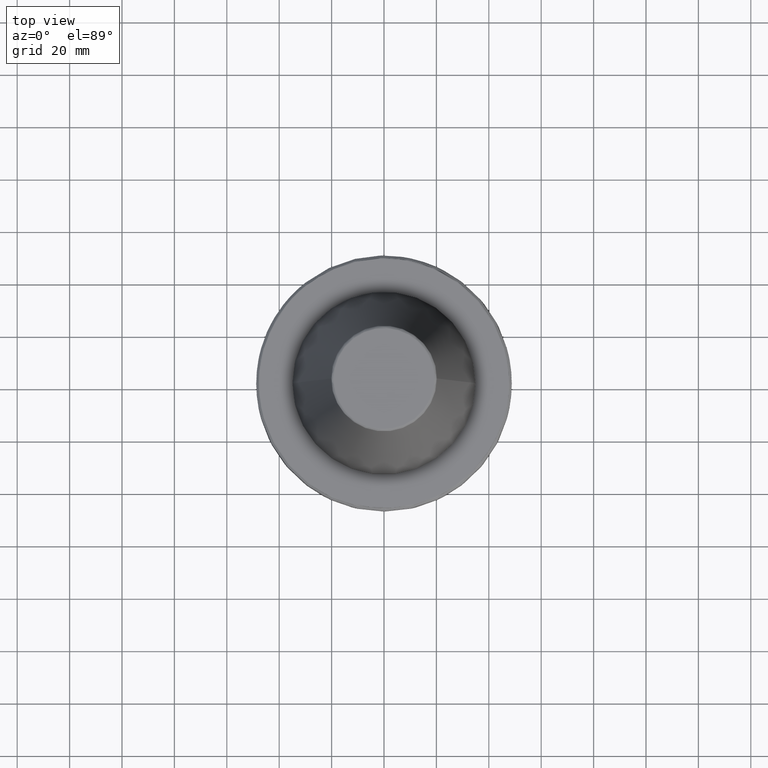
[diagram: clean part render]
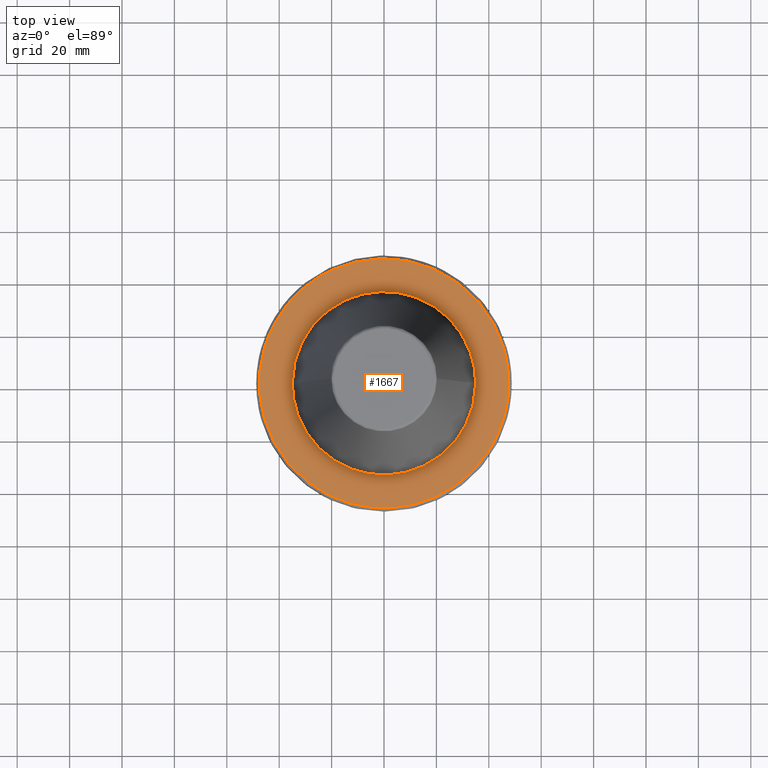
[diagram: same view with one face highlighted and labeled with its STEP entity id]
A machine part, top view. The second image highlights one B-rep face of the part: STEP entity #1667.
In plain terms, the highlighted planar face has unit normal (0, 0, 1).
Its self-contained STEP definition (entity closure, byte-faithful):
#5 = CARTESIAN_POINT ( 'NONE',  ( -30.56583245052333500, -36.56395844824054800, -3.200000000000000200 ) ) ;
#11 = CARTESIAN_POINT ( 'NONE',  ( -32.53223893886713800, -34.82602765836450200, -3.200000000000000200 ) ) ;
#22 = CARTESIAN_POINT ( 'NONE',  ( -34.57761234899415100, -32.69070567705201600, -3.199999999999999700 ) ) ;
#51 = CARTESIAN_POINT ( 'NONE',  ( -43.04865088727909500, -20.27515829118352600, -3.199999999999999700 ) ) ;
#60 = DIRECTION ( 'NONE',  ( 1.000000000000000000, 0.0000000000000000000, 0.0000000000000000000 ) ) ;
#162 = CARTESIAN_POINT ( 'NONE',  ( -43.54708784153742600, 19.43494740885934700, -3.200000000000000200 ) ) ;
#187 = DIRECTION ( 'NONE',  ( 1.000000000000000000, 0.0000000000000000000, 0.0000000000000000000 ) ) ;
#190 = CARTESIAN_POINT ( 'NONE',  ( -35.13085002082388500, -32.09796523341824300, -3.200000000000000200 ) ) ;
#203 = AXIS2_PLACEMENT_3D ( 'NONE', #1049, #1151, #1007 ) ;
#219 = ORIENTED_EDGE ( 'NONE', *, *, #4803, .T. ) ;
#272 = EDGE_CURVE ( 'NONE', #3773, #4533, #2235, .T. ) ;
#274 = CARTESIAN_POINT ( 'NONE',  ( -39.42887053637796400, -26.63902506833018400, -3.199999999999999700 ) ) ;
#280 = ORIENTED_EDGE ( 'NONE', *, *, #316, .T. ) ;
#306 = CARTESIAN_POINT ( 'NONE',  ( -37.35450850866810400, -29.52749904791864600, -3.200000000000000600 ) ) ;
#316 = EDGE_CURVE ( 'NONE', #4050, #3696, #916, .T. ) ;
#326 = CARTESIAN_POINT ( 'NONE',  ( -35.89007667602249500, -31.25572989631257700, -3.199999999999998800 ) ) ;
#414 = AXIS2_PLACEMENT_3D ( 'NONE', #5014, #5003, #60 ) ;
#420 = B_SPLINE_CURVE_WITH_KNOTS ( 'NONE', 3,
 ( #1642, #2746, #1372, #2539, #3924, #1288, #1293, #1889, #1309, #2368, #4288, #2978, #4916, #2225, #4567, #2908, #4335, #2614, #1805, #1351, #3908, #3111, #2706, #2800, #1375, #3389, #1131, #4570, #1718, #3415, #1708, #1700, #3849, #2238, #2463, #1383, #3268, #1344, #2587, #3668, #1958, #1968, #4903, #2216, #1135, #1158, #2822, #1567, #1108, #1095, #1091, #1087, #1085, #1078, #1077, #1067, #1063, #1068, #1074, #1059, #1053, #4521, #1152, #1118, #1123, #1023, #1015, #4855, #4522, #1933, #2169, #4463, #1565, #1030, #1051, #1137, #1045, #1024, #1041, #1010, #999, #995, #989, #969, #952, #950, #944, #943, #935, #932, #930, #927, #926, #919, #914, #911, #905, #904, #897, #890, #887, #880, #872, #867, #862, #861, #855, #852, #846, #844, #836, #830, #823, #821 ),
 .UNSPECIFIED., .F., .F.,
 ( 4, 1, 1, 1, 1, 1, 2, 2, 1, 1, 1, 1, 1, 2, 2, 1, 1, 1, 1, 2, 2, 2, 1, 1, 1, 1, 2, 2, 1, 1, 1, 1, 1, 2, 2, 1, 1, 1, 1, 1, 2, 2, 2, 1, 1, 1, 1, 1, 2, 2, 1, 1, 1, 1, 1, 2, 2, 1, 1, 1, 1, 2, 2, 2, 1, 1, 1, 1, 2, 2, 1, 1, 1, 1, 1, 2, 2, 1, 1, 1, 1, 1, 2, 2, 4 ),
 ( 0.0000000000000000000, 0.03124999999999995100, 0.04687499999999993100, 0.05468749999999993100, 0.05859374999999991000, 0.06054687499999991000, 0.06152343749999988200, 0.06249999999999985400, 0.09374999999999808500, 0.1093749999999971400, 0.1171874999999966800, 0.1210937499999964600, 0.1230468749999963800, 0.1240234374999963800, 0.1249999999999963800, 0.1562499999999951400, 0.1718749999999945000, 0.1796874999999942300, 0.1835937499999940600, 0.1855468749999939500, 0.1874999999999938400, 0.2499999999999893400, 0.2812499999999871200, 0.2968749999999860100, 0.3046874999999854000, 0.3085937499999851200, 0.3105468749999850100, 0.3124999999999849000, 0.3437499999999827400, 0.3593749999999816300, 0.3671874999999811300, 0.3710937499999808500, 0.3730468749999806300, 0.3740234374999805700, 0.3749999999999805200, 0.4062499999999794100, 0.4218749999999788500, 0.4296874999999785700, 0.4335937499999784600, 0.4355468749999784100, 0.4365234374999784100, 0.4374999999999784100, 0.4999999999999781300, 0.5312499999999780200, 0.5468749999999779100, 0.5546874999999779100, 0.5585937499999779100, 0.5605468749999779100, 0.5615234374999779100, 0.5624999999999779100, 0.5937499999999764600, 0.6093749999999755800, 0.6171874999999752400, 0.6210937499999750200, 0.6230468749999749100, 0.6240234374999749100, 0.6249999999999749100, 0.6562499999999756900, 0.6718749999999761300, 0.6796874999999762400, 0.6835937499999764600, 0.6855468749999765700, 0.6874999999999766900, 0.7499999999999799000, 0.7812499999999814600, 0.7968749999999823500, 0.8046874999999827900, 0.8085937499999830100, 0.8105468749999831200, 0.8124999999999832400, 0.8437499999999857900, 0.8593749999999871200, 0.8671874999999877900, 0.8710937499999881200, 0.8730468749999883400, 0.8740234374999884500, 0.8749999999999885600, 0.9062499999999917800, 0.9218749999999934500, 0.9296874999999942300, 0.9335937499999946700, 0.9355468749999948900, 0.9365234374999950000, 0.9374999999999951200, 1.000000000000000000 ),
 .UNSPECIFIED. ) ;
#430 = VERTEX_POINT ( 'NONE', #2336 ) ;
#468 = CARTESIAN_POINT ( 'NONE',  ( -43.88793353366485700, -18.40578674973217200, -3.200000000000000600 ) ) ;
#535 = ORIENTED_EDGE ( 'NONE', *, *, #581, .T. ) ;
#541 = VERTEX_POINT ( 'NONE', #4826 ) ;
#573 = CARTESIAN_POINT ( 'NONE',  ( -45.61430141498812000, 13.55000000000003400, -3.200000000000000600 ) ) ;
#581 = EDGE_CURVE ( 'NONE', #4533, #3773, #420, .T. ) ;
#586 = EDGE_LOOP ( 'NONE', ( #802, #535 ) ) ;
#603 = CARTESIAN_POINT ( 'NONE',  ( 45.61430141498814800, 13.54999999999998800, -3.200000000000008200 ) ) ;
#798 = DIRECTION ( 'NONE',  ( -0.0000000000000000000, -0.0000000000000000000, 1.000000000000000000 ) ) ;
#802 = ORIENTED_EDGE ( 'NONE', *, *, #272, .T. ) ;
#808 = CARTESIAN_POINT ( 'NONE',  ( -28.52667124222444200, 38.13264634449122100, -3.200000000000000200 ) ) ;
#812 = ORIENTED_EDGE ( 'NONE', *, *, #2497, .T. ) ;
#821 = CARTESIAN_POINT ( 'NONE',  ( -35.00000000000000000, 4.286263797015737300E-015, -3.200000000000000600 ) ) ;
#823 = CARTESIAN_POINT ( 'NONE',  ( -35.00000000000000000, -2.140949734350461300, -3.199999999999999300 ) ) ;
#825 = CARTESIAN_POINT ( 'NONE',  ( -30.00000000000000000, 36.93598507658067100, -3.200000000000008200 ) ) ;
#830 = CARTESIAN_POINT ( 'NONE',  ( -34.80522929819336000, -4.263852012492216100, -3.199999999999999700 ) ) ;
#834 = CARTESIAN_POINT ( 'NONE',  ( -26.98740680887002000, 39.23710298026052400, -3.199999999999999700 ) ) ;
#836 = CARTESIAN_POINT ( 'NONE',  ( -34.40960131014864500, -6.401595191017770000, -3.200000000000000600 ) ) ;
#840 = CARTESIAN_POINT ( 'NONE',  ( -25.33204419653259300, 40.28098785900193900, -3.200000000000000200 ) ) ;
#844 = CARTESIAN_POINT ( 'NONE',  ( -34.40272425953199300, -6.438461267132821900, -3.200000000000001100 ) ) ;
#846 = CARTESIAN_POINT ( 'NONE',  ( -34.38960595214313500, -6.508170961272730500, -3.200000000000000600 ) ) ;
#849 = CARTESIAN_POINT ( 'NONE',  ( -25.27949011361637200, 40.31399222872044400, -3.200000000000000200 ) ) ;
#852 = CARTESIAN_POINT ( 'NONE',  ( -34.36977381871909600, -6.612690763914757900, -3.200000000000000600 ) ) ;
#854 = CARTESIAN_POINT ( 'NONE',  ( -25.02211712299833800, 40.47451718244757800, -3.200000000000000200 ) ) ;
#855 = CARTESIAN_POINT ( 'NONE',  ( -34.32241613434451500, -6.856257133437938300, -3.200000000000000200 ) ) ;
#859 = CARTESIAN_POINT ( 'NONE',  ( -24.66047681321442300, 40.69683095873308800, -3.200000000000001100 ) ) ;
#861 = CARTESIAN_POINT ( 'NONE',  ( -34.22336994005453900, -7.342137192584755400, -3.200000000000000200 ) ) ;
#862 = CARTESIAN_POINT ( 'NONE',  ( -34.00795424931148100, -8.308886591280263200, -3.200000000000000600 ) ) ;
#864 = CARTESIAN_POINT ( 'NONE',  ( -25.17660737734825100, 40.37832428545157600, -3.200000000000000200 ) ) ;
#865 = CARTESIAN_POINT ( 'NONE',  ( -23.93254399511004500, 41.13291324448347600, -3.199999999999999300 ) ) ;
#867 = CARTESIAN_POINT ( 'NONE',  ( -33.50782965917290600, -10.22234251027873800, -3.199999999999999700 ) ) ;
#869 = CARTESIAN_POINT ( 'NONE',  ( -22.45806956475531600, 41.97089674870178300, -3.199999999999999700 ) ) ;
#872 = CARTESIAN_POINT ( 'NONE',  ( -32.96036308136418600, -11.82808836360453800, -3.200000000000000600 ) ) ;
#877 = CARTESIAN_POINT ( 'NONE',  ( -21.16233354877233800, 42.63057220840472200, -3.200000000000000200 ) ) ;
#880 = CARTESIAN_POINT ( 'NONE',  ( -32.52953514517947300, -12.91629066188620600, -3.200000000000001500 ) ) ;
#887 = CARTESIAN_POINT ( 'NONE',  ( -32.51532341133536600, -12.95202981245658700, -3.200000000000000200 ) ) ;
#890 = CARTESIAN_POINT ( 'NONE',  ( -32.48790124031761900, -13.02066417722249800, -3.200000000000001100 ) ) ;
#895 = CARTESIAN_POINT ( 'NONE',  ( -20.06115815705340900, 43.14895193716142100, -3.200000000000000600 ) ) ;
#897 = CARTESIAN_POINT ( 'NONE',  ( -32.44661293862293400, -13.12353511134623600, -3.200000000000000600 ) ) ;
#901 = CARTESIAN_POINT ( 'NONE',  ( -19.83745916813386900, 43.25225713279606800, -3.199999999999999700 ) ) ;
#904 = CARTESIAN_POINT ( 'NONE',  ( -32.34918825182566600, -13.36300299979238400, -3.200000000000000200 ) ) ;
#905 = CARTESIAN_POINT ( 'NONE',  ( -32.14999761352568400, -13.83968161198105500, -3.199999999999999700 ) ) ;
#908 = CARTESIAN_POINT ( 'NONE',  ( -20.17458114180277900, 43.09603074551122900, -3.199999999999999700 ) ) ;
#911 = CARTESIAN_POINT ( 'NONE',  ( -31.73425127810394000, -14.78401017754392500, -3.200000000000000600 ) ) ;
#914 = CARTESIAN_POINT ( 'NONE',  ( -30.83329837197338800, -16.63655267341178100, -3.200000000000001500 ) ) ;
#916 = CIRCLE ( 'NONE', #2458, 47.58431457505077600 ) ;
#919 = CARTESIAN_POINT ( 'NONE',  ( -29.94197833479797300, -18.16253543799919300, -3.200000000000000600 ) ) ;
#924 = CARTESIAN_POINT ( 'NONE',  ( -18.71353161066880600, 43.75500246139003500, -3.199999999999999700 ) ) ;
#926 = CARTESIAN_POINT ( 'NONE',  ( -29.25439692751874100, -19.21420423913502900, -3.200000000000000600 ) ) ;
#927 = CARTESIAN_POINT ( 'NONE',  ( -29.21200324985685300, -19.27860445471714700, -3.200000000000000600 ) ) ;
#928 = CARTESIAN_POINT ( 'NONE',  ( -17.12310430754070400, 44.41590363918441400, -3.200000000000001100 ) ) ;
#930 = CARTESIAN_POINT ( 'NONE',  ( -29.12859832660762600, -19.40440699317025200, -3.200000000000000600 ) ) ;
#932 = CARTESIAN_POINT ( 'NONE',  ( -29.00292566128046800, -19.59265025306582700, -3.200000000000000600 ) ) ;
#935 = CARTESIAN_POINT ( 'NONE',  ( -28.70573247901074200, -20.02866069166710600, -3.200000000000001100 ) ) ;
#939 = CARTESIAN_POINT ( 'NONE',  ( -15.73464554186262600, 44.91837702302721900, -3.199999999999999700 ) ) ;
#940 = ORIENTED_EDGE ( 'NONE', *, *, #4641, .T. ) ;
#941 = CARTESIAN_POINT ( 'NONE',  ( -13.85084669834794500, 45.52455029067187600, -3.199999999999999700 ) ) ;
#943 = CARTESIAN_POINT ( 'NONE',  ( -28.09551826177911600, -20.88778623091590700, -3.200000000000000600 ) ) ;
#944 = CARTESIAN_POINT ( 'NONE',  ( -26.81177841654718800, -22.55445595759855200, -3.200000000000001100 ) ) ;
#946 = CARTESIAN_POINT ( 'NONE',  ( -19.50138494802546400, 43.40588131499841800, -3.200000000000000200 ) ) ;
#948 = CARTESIAN_POINT ( 'NONE',  ( -14.32504166206599400, 45.37755050977440900, -3.200000000000000200 ) ) ;
#950 = CARTESIAN_POINT ( 'NONE',  ( -25.60289613074492700, -23.89460483450089300, -3.200000000000001100 ) ) ;
#952 = CARTESIAN_POINT ( 'NONE',  ( -23.04041976309767400, -26.45700235558571100, -3.199999999999999700 ) ) ;
#960 = CARTESIAN_POINT ( 'NONE',  ( -13.13810827484324400, 45.73940813873869600, -3.200000000000001100 ) ) ;
#962 = CARTESIAN_POINT ( 'NONE',  ( -14.56357692435488200, 45.30154187624018600, -3.199999999999999700 ) ) ;
#969 = CARTESIAN_POINT ( 'NONE',  ( -21.17444947146037700, -27.97287582437680700, -3.199999999999999700 ) ) ;
#971 = CARTESIAN_POINT ( 'NONE',  ( -11.46493010783894400, 46.20125035460578300, -3.199999999999999700 ) ) ;
#981 = CARTESIAN_POINT ( 'NONE',  ( -10.01342565813241200, 46.52941323171096900, -3.200000000000000200 ) ) ;
#986 = CARTESIAN_POINT ( 'NONE',  ( -5.119585582123243700, 47.34983381931856200, -3.199999999999999300 ) ) ;
#989 = CARTESIAN_POINT ( 'NONE',  ( -19.08915049026184700, -29.33615436353641900, -3.200000000000000600 ) ) ;
#991 = CARTESIAN_POINT ( 'NONE',  ( -2.889151954426300700, 47.49717070755006900, -3.199999999999999700 ) ) ;
#992 = CARTESIAN_POINT ( 'NONE',  ( -7.087281111877444100, 47.09546981345162200, -3.200000000000000200 ) ) ;
#995 = CARTESIAN_POINT ( 'NONE',  ( -19.02846970913748200, -29.37554792988932900, -3.199999999999998800 ) ) ;
#999 = CARTESIAN_POINT ( 'NONE',  ( -18.90427742788488900, -29.45563184198417900, -3.200000000000000600 ) ) ;
#1005 = CARTESIAN_POINT ( 'NONE',  ( -2.645014036823139400, 47.51138638385852200, -3.200000000000000600 ) ) ;
#1007 = DIRECTION ( 'NONE',  ( 1.000000000000000000, 0.0000000000000000000, -0.0000000000000000000 ) ) ;
#1010 = CARTESIAN_POINT ( 'NONE',  ( -18.71766838409589400, -29.57513658498475500, -3.200000000000000600 ) ) ;
#1011 = CARTESIAN_POINT ( 'NONE',  ( -2.153043807382593500, 47.53623884645557500, -3.200000000000000200 ) ) ;
#1012 = CARTESIAN_POINT ( 'NONE',  ( -1.415082110017375400, 47.56778356128077000, -3.200000000000001100 ) ) ;
#1015 = CARTESIAN_POINT ( 'NONE',  ( -7.484680064100915700, -34.20919177140100200, -3.200000000000000600 ) ) ;
#1019 = CARTESIAN_POINT ( 'NONE',  ( 1.782910742008477500, 47.56112784876267300, -3.199999999999999700 ) ) ;
#1022 = CARTESIAN_POINT ( 'NONE',  ( 2.889977175542016500, 47.49663232912722300, -3.200000000000001100 ) ) ;
#1023 = CARTESIAN_POINT ( 'NONE',  ( -6.333832670997710000, -34.42214089842946100, -3.200000000000000200 ) ) ;
#1024 = CARTESIAN_POINT ( 'NONE',  ( -17.39569460397837400, -30.38123465404614300, -3.200000000000000600 ) ) ;
#1025 = CARTESIAN_POINT ( 'NONE',  ( 0.3068729895989130200, 47.60125004237991700, -3.200000000000000200 ) ) ;
#1026 = CARTESIAN_POINT ( 'NONE',  ( 3.251341897542705500, 47.47326417020992300, -3.200000000000000600 ) ) ;
#1029 = PLANE ( 'NONE',  #203 ) ;
#1030 = CARTESIAN_POINT ( 'NONE',  ( -12.81732741286802100, -32.56865578623072800, -3.200000000000000600 ) ) ;
#1041 = CARTESIAN_POINT ( 'NONE',  ( -18.28000292855092800, -29.84963310932764500, -3.199999999999999700 ) ) ;
#1043 = CARTESIAN_POINT ( 'NONE',  ( 3.614324310248195900, 47.44794916077007200, -3.200000000000000200 ) ) ;
#1045 = CARTESIAN_POINT ( 'NONE',  ( -15.59116830090281700, -31.37487172761408500, -3.200000000000001500 ) ) ;
#1046 = CARTESIAN_POINT ( 'NONE',  ( 4.460096613536384400, 47.37922375094827000, -3.200000000000001500 ) ) ;
#1047 = CARTESIAN_POINT ( 'NONE',  ( 8.599105360734835600, 46.80091873707301200, -3.199999999999999700 ) ) ;
#1049 = CARTESIAN_POINT ( 'NONE',  ( 0.0000000000000000000, 0.0000000000000000000, -3.200000000000000200 ) ) ;
#1051 = CARTESIAN_POINT ( 'NONE',  ( -12.84895367128145700, -32.55619322207798700, -3.200000000000000200 ) ) ;
#1053 = CARTESIAN_POINT ( 'NONE',  ( -5.446642676575814700, -34.57547315145217200, -3.199999999999999700 ) ) ;
#1059 = CARTESIAN_POINT ( 'NONE',  ( -4.522662636201488300, -34.71395181551518000, -3.200000000000000200 ) ) ;
#1062 = CARTESIAN_POINT ( 'NONE',  ( 3.009240607197016400, 47.48922112369720600, -3.200000000000001500 ) ) ;
#1063 = CARTESIAN_POINT ( 'NONE',  ( 2.140418918370826000, -34.99996756755254500, -3.199999999999999700 ) ) ;
#1065 = CARTESIAN_POINT ( 'NONE',  ( 7.584584315874153000, 46.98600002214963200, -3.199999999999999700 ) ) ;
#1067 = CARTESIAN_POINT ( 'NONE',  ( 4.264027316360163400, -34.80519685504652500, -3.200000000000000200 ) ) ;
#1068 = CARTESIAN_POINT ( 'NONE',  ( -1.070209459185427600, -35.00001621622374900, -3.200000000000001500 ) ) ;
#1070 = CARTESIAN_POINT ( 'NONE',  ( 8.656115448807391000, 46.79040597101618500, -3.199999999999999700 ) ) ;
#1074 = CARTESIAN_POINT ( 'NONE',  ( -2.668954907877634200, -34.92698936521405500, -3.200000000000001500 ) ) ;
#1076 = CARTESIAN_POINT ( 'NONE',  ( 6.146894581347632800, 47.20314471345571400, -3.200000000000001100 ) ) ;
#1077 = CARTESIAN_POINT ( 'NONE',  ( 6.401592451894831700, -34.40960181707281900, -3.199999999999999700 ) ) ;
#1078 = CARTESIAN_POINT ( 'NONE',  ( 6.438461267130185700, -34.40272425953249800, -3.199999999999999700 ) ) ;
#1081 = CARTESIAN_POINT ( 'NONE',  ( 8.772723232965624600, 46.76868379302919000, -3.200000000000000200 ) ) ;
#1085 = CARTESIAN_POINT ( 'NONE',  ( 6.508170961267519600, -34.38960595214408000, -3.200000000000000200 ) ) ;
#1087 = CARTESIAN_POINT ( 'NONE',  ( 6.612690763905746400, -34.36977381872073800, -3.200000000000001100 ) ) ;
#1091 = CARTESIAN_POINT ( 'NONE',  ( 6.856257133420490900, -34.32241613434766900, -3.199999999999999700 ) ) ;
#1093 = CARTESIAN_POINT ( 'NONE',  ( 8.947554896767426800, 46.73577824853473600, -3.200000000000000200 ) ) ;
#1095 = CARTESIAN_POINT ( 'NONE',  ( 7.342137192552193000, -34.22336994006042900, -3.199999999999999700 ) ) ;
#1097 = CARTESIAN_POINT ( 'NONE',  ( 10.16745593403839700, 46.48964783889043400, -3.200000000000000600 ) ) ;
#1100 = CARTESIAN_POINT ( 'NONE',  ( 11.78353569215529000, 46.11936303087660600, -3.200000000000001100 ) ) ;
#1108 = CARTESIAN_POINT ( 'NONE',  ( 8.308886591224443000, -34.00795424932159200, -3.199999999999999700 ) ) ;
#1117 = CARTESIAN_POINT ( 'NONE',  ( 9.354935358589495200, 46.65674270211674500, -3.200000000000000600 ) ) ;
#1118 = CARTESIAN_POINT ( 'NONE',  ( -6.237098849438081200, -34.43979846253916600, -3.200000000000000200 ) ) ;
#1120 = CARTESIAN_POINT ( 'NONE',  ( 13.15338452577391600, 45.74009876990255900, -3.200000000000001100 ) ) ;
#1121 = CARTESIAN_POINT ( 'NONE',  ( 15.87259900951194100, 44.89906720438591500, -3.199999999999999300 ) ) ;
#1123 = CARTESIAN_POINT ( 'NONE',  ( -6.302909256716819900, -34.42781451759805800, -3.199999999999999300 ) ) ;
#1127 = CARTESIAN_POINT ( 'NONE',  ( 17.64654270466424200, 44.23199334315661700, -3.200000000000000600 ) ) ;
#1128 = CARTESIAN_POINT ( 'NONE',  ( 19.49036463491575000, 43.40963344949943800, -3.199999999999999700 ) ) ;
#1131 = CARTESIAN_POINT ( 'NONE',  ( 29.33615436353597900, -19.08915049026279600, -3.200000000000001100 ) ) ;
#1133 = CARTESIAN_POINT ( 'NONE',  ( 19.60099611362383600, 43.35979223299119000, -3.200000000000000200 ) ) ;
#1135 = CARTESIAN_POINT ( 'NONE',  ( 12.95202981245491700, -32.51532341133663100, -3.200000000000000600 ) ) ;
#1137 = CARTESIAN_POINT ( 'NONE',  ( -13.98287206295725200, -32.10730462061110300, -3.200000000000000200 ) ) ;
#1138 = CARTESIAN_POINT ( 'NONE',  ( 19.43372875604140000, 43.43501619728882400, -3.199999999999999700 ) ) ;
#1140 = B_SPLINE_CURVE_WITH_KNOTS ( 'NONE', 3,
 ( #2303, #3106, #2728, #162, #3122, #573 ),
 .UNSPECIFIED., .F., .F.,
 ( 4, 2, 4 ),
 ( 0.0000000000000000000, 0.5000000000000000000, 1.000000000000000000 ),
 .UNSPECIFIED. ) ;
#1144 = CARTESIAN_POINT ( 'NONE',  ( 20.15248412370166900, 43.10740714057632800, -3.200000000000000200 ) ) ;
#1149 = CARTESIAN_POINT ( 'NONE',  ( 20.91936532353698300, 42.74416180623448700, -3.200000000000000600 ) ) ;
#1151 = DIRECTION ( 'NONE',  ( 0.0000000000000000000, 0.0000000000000000000, 1.000000000000000000 ) ) ;
#1152 = CARTESIAN_POINT ( 'NONE',  ( -6.138370408949490400, -34.45763170187397900, -3.200000000000000600 ) ) ;
#1158 = CARTESIAN_POINT ( 'NONE',  ( 12.91629066188754700, -32.52953514517923800, -3.200000000000000600 ) ) ;
#1160 = CARTESIAN_POINT ( 'NONE',  ( 22.43503376051662800, 41.98321477246887700, -3.200000000000000600 ) ) ;
#1167 = CARTESIAN_POINT ( 'NONE',  ( 24.74573972520320100, 40.64394770848628000, -3.199999999999999700 ) ) ;
#1169 = CARTESIAN_POINT ( 'NONE',  ( -34.20919177140901000, 7.484680064057585900, -3.200000000000000200 ) ) ;
#1174 = CARTESIAN_POINT ( 'NONE',  ( 19.76678177844764100, 43.28472276211201100, -3.200000000000000600 ) ) ;
#1175 = CARTESIAN_POINT ( 'NONE',  ( 24.63874541703533400, 40.70889109936176500, -3.200000000000000200 ) ) ;
#1184 = CARTESIAN_POINT ( 'NONE',  ( 24.95587079667329200, 40.51526929576604600, -3.199999999999999300 ) ) ;
#1186 = CARTESIAN_POINT ( 'NONE',  ( 23.70315991331472800, 41.27190640338655900, -3.200000000000000200 ) ) ;
#1195 = CARTESIAN_POINT ( 'NONE',  ( 25.27025022232281200, 40.32107391084372900, -3.199999999999999700 ) ) ;
#1197 = CARTESIAN_POINT ( 'NONE',  ( 25.99808194461567700, 39.85970698513112600, -3.200000000000000200 ) ) ;
#1202 = CARTESIAN_POINT ( 'NONE',  ( 28.61973875757003700, 38.02828181971434400, -3.200000000000000200 ) ) ;
#1205 = CARTESIAN_POINT ( 'NONE',  ( 29.58867595935849000, 37.26711317191480800, -3.200000000000000600 ) ) ;
#1210 = CARTESIAN_POINT ( 'NONE',  ( 27.43086430564404300, 38.90399569013028000, -3.199999999999999700 ) ) ;
#1213 = CARTESIAN_POINT ( 'NONE',  ( 29.78434383588273700, 37.11093869942935400, -3.200000000000001100 ) ) ;
#1217 = CARTESIAN_POINT ( 'NONE',  ( 30.16990998852274000, 36.79819512847421900, -3.200000000000000200 ) ) ;
#1218 = CARTESIAN_POINT ( 'NONE',  ( 30.74437005324083600, 36.32474440313174600, -3.199999999999999700 ) ) ;
#1222 = CARTESIAN_POINT ( 'NONE',  ( 33.13646789430458700, 34.16474037057050600, -3.200000000000000600 ) ) ;
#1226 = CARTESIAN_POINT ( 'NONE',  ( 35.23207161259706100, 32.04549828589326700, -3.200000000000000200 ) ) ;
#1227 = CARTESIAN_POINT ( 'NONE',  ( 32.05755272122296200, 35.18967846163106100, -3.200000000000000600 ) ) ;
#1236 = CARTESIAN_POINT ( 'NONE',  ( 37.89729735943479500, 28.77713114763101000, -3.200000000000000200 ) ) ;
#1238 = CARTESIAN_POINT ( 'NONE',  ( 38.04468543629964500, 28.58198463059184000, -3.199999999999999700 ) ) ;
#1243 = CARTESIAN_POINT ( 'NONE',  ( 38.33853659443814600, 28.18663181543956900, -3.200000000000001100 ) ) ;
#1247 = CARTESIAN_POINT ( 'NONE',  ( 40.54480131739867200, 24.92706840147657100, -3.200000000000000200 ) ) ;
#1248 = CARTESIAN_POINT ( 'NONE',  ( 36.53624278579643200, 30.55028448884537800, -3.200000000000000600 ) ) ;
#1255 = CARTESIAN_POINT ( 'NONE',  ( 39.75855193670673800, 26.17691205094097000, -3.199999999999999300 ) ) ;
#1261 = CARTESIAN_POINT ( 'NONE',  ( 41.10589712480054900, 23.97055010317598100, -3.200000000000000600 ) ) ;
#1263 = CARTESIAN_POINT ( 'NONE',  ( -33.22762448502673000, 11.02286519843548100, -3.199999999999999300 ) ) ;
#1266 = CARTESIAN_POINT ( 'NONE',  ( 38.77454812695968700, 27.59041333251079600, -3.200000000000000200 ) ) ;
#1267 = CARTESIAN_POINT ( 'NONE',  ( 41.16595836708885500, 23.86724792863052300, -3.200000000000000200 ) ) ;
#1269 = CARTESIAN_POINT ( 'NONE',  ( -20.02866069170161700, 28.70573247898518700, -3.200000000000001100 ) ) ;
#1271 = CARTESIAN_POINT ( 'NONE',  ( -34.42214089842920500, 6.333832670999061800, -3.199999999999999700 ) ) ;
#1273 = CARTESIAN_POINT ( 'NONE',  ( 41.28712211137440800, 23.65704087306905000, -3.200000000000000200 ) ) ;
#1274 = CARTESIAN_POINT ( 'NONE',  ( 41.88011224123823000, 22.59954653762640600, -3.199999999999998800 ) ) ;
#1276 = DIRECTION ( 'NONE',  ( 1.000000000000000000, 0.0000000000000000000, 0.0000000000000000000 ) ) ;
#1278 = CARTESIAN_POINT ( 'NONE',  ( 42.67032287643228700, 21.09892721098846400, -3.199999999999998800 ) ) ;
#1283 = CARTESIAN_POINT ( 'NONE',  ( 41.46762625119976800, 23.34110521963310000, -3.199999999999999700 ) ) ;
#1285 = CARTESIAN_POINT ( 'NONE',  ( 43.28805540108506700, 19.78267870937098700, -3.200000000000000200 ) ) ;
#1288 = CARTESIAN_POINT ( 'NONE',  ( 34.49823719593174300, -5.907950186018658700, -3.199999999999999700 ) ) ;
#1290 = CARTESIAN_POINT ( 'NONE',  ( 43.69747580304702700, 18.83616776526730200, -3.199999999999999700 ) ) ;
#1292 = CARTESIAN_POINT ( 'NONE',  ( 43.72038509902864000, 18.78292708330470600, -3.200000000000000200 ) ) ;
#1293 = CARTESIAN_POINT ( 'NONE',  ( 34.45762826542811300, -6.138388980637482300, -3.200000000000000600 ) ) ;
#1298 = CARTESIAN_POINT ( 'NONE',  ( 43.83677434805175500, 18.51023748605553000, -3.199999999999999700 ) ) ;
#1303 = CARTESIAN_POINT ( 'NONE',  ( 43.99724211658683300, 18.12757647529779700, -3.200000000000000200 ) ) ;
#1309 = CARTESIAN_POINT ( 'NONE',  ( 34.42781351200216000, -6.302914691289109900, -3.199999999999999300 ) ) ;
#1310 = CARTESIAN_POINT ( 'NONE',  ( 43.76706569847472400, 18.67389639942733800, -3.200000000000001100 ) ) ;
#1314 = CARTESIAN_POINT ( 'NONE',  ( 44.89884780774589500, 15.80948444982595000, -3.200000000000000200 ) ) ;
#1328 = CARTESIAN_POINT ( 'NONE',  ( 45.61430141498814800, 13.54999999999998800, -3.200000000000008200 ) ) ;
#1337 = CARTESIAN_POINT ( 'NONE',  ( 44.30943466507817900, 17.35909360222154900, -3.200000000000000200 ) ) ;
#1341 = CARTESIAN_POINT ( 'NONE',  ( 28.70573247902078500, 20.02866069165706600, -3.200000000000000200 ) ) ;
#1343 = CARTESIAN_POINT ( 'NONE',  ( 45.34410715120667800, 14.45957362278436300, -3.200000000000000200 ) ) ;
#1344 = CARTESIAN_POINT ( 'NONE',  ( 18.16253543797202500, -29.94197833481824500, -3.200000000000000600 ) ) ;
#1351 = CARTESIAN_POINT ( 'NONE',  ( 32.10730462062537800, -13.98287206293925200, -3.200000000000001500 ) ) ;
#1356 = CARTESIAN_POINT ( 'NONE',  ( -45.26810526763219400, -14.71542401580825800, -3.200000000000000200 ) ) ;
#1372 = CARTESIAN_POINT ( 'NONE',  ( 34.92696098682253600, -2.669108274075315400, -3.200000000000001100 ) ) ;
#1375 = CARTESIAN_POINT ( 'NONE',  ( 29.45563184198762100, -18.90427742788056500, -3.200000000000000600 ) ) ;
#1383 = CARTESIAN_POINT ( 'NONE',  ( 19.27860445472082400, -29.21200324985414900, -3.200000000000002000 ) ) ;
#1418 = B_SPLINE_CURVE_WITH_KNOTS ( 'NONE', 3,
 ( #1328, #1343, #1314, #1337, #1303, #1298, #1310, #1292, #1290, #1285, #1278, #1274, #1283, #1273, #1267, #1261, #1247, #1255, #1266, #1243, #1238, #1236, #1248, #1226, #1222, #1227, #1218, #1217, #1213, #1205, #1202, #1210, #1197, #1195, #1184, #1167, #1175, #1186, #1160, #1149, #1144, #1174, #1133, #1128, #1138, #1127, #1121, #1120, #1100, #1097, #1117, #1093, #1081, #1070, #1047, #1065, #1076, #1046, #1043, #1026, #1062, #1022, #1019, #1025, #1012, #1011, #1005, #991, #986, #992, #981, #971, #960, #941, #948, #962, #939, #928, #924, #946, #901, #895, #908, #877, #869, #865, #859, #854, #864, #849, #840, #834, #808, #825 ),
 .UNSPECIFIED., .F., .F.,
 ( 4, 1, 1, 1, 1, 2, 2, 1, 1, 1, 2, 2, 1, 1, 2, 2, 2, 1, 1, 2, 2, 1, 1, 1, 2, 2, 1, 1, 1, 1, 2, 2, 2, 1, 1, 1, 1, 2, 2, 1, 1, 1, 2, 2, 1, 1, 2, 2, 2, 1, 1, 2, 2, 1, 1, 1, 2, 2, 1, 1, 1, 1, 2, 2, 4 ),
 ( 0.0000000000000000000, 0.03124999999999753000, 0.04687499999999636400, 0.05468749999999578100, 0.05859374999999558000, 0.06054687499999553100, 0.06249999999999547600, 0.09374999999999437900, 0.1093749999999937800, 0.1171874999999934200, 0.1210937499999933500, 0.1249999999999932800, 0.1562499999999935900, 0.1718749999999937300, 0.1796874999999938100, 0.1874999999999938900, 0.2499999999999937300, 0.2812499999999936200, 0.2968749999999936700, 0.3046874999999937300, 0.3124999999999937800, 0.3437499999999941200, 0.3593749999999943400, 0.3671874999999943900, 0.3710937499999943900, 0.3749999999999943400, 0.4062499999999943900, 0.4218749999999945600, 0.4296874999999946200, 0.4335937499999946200, 0.4355468749999946200, 0.4374999999999946200, 0.4999999999999951200, 0.5312499999999953400, 0.5468749999999954500, 0.5546874999999954500, 0.5585937499999954500, 0.5605468749999955600, 0.5624999999999955600, 0.5937499999999963400, 0.6093749999999966700, 0.6171874999999968900, 0.6210937499999970000, 0.6249999999999971100, 0.6562499999999978900, 0.6718749999999982200, 0.6796874999999983300, 0.6874999999999984500, 0.7499999999999997800, 0.7812500000000004400, 0.7968750000000007800, 0.8046875000000008900, 0.8125000000000010000, 0.8437500000000014400, 0.8593750000000016700, 0.8671875000000017800, 0.8710937500000017800, 0.8750000000000017800, 0.9062500000000018900, 0.9218750000000020000, 0.9296875000000021100, 0.9335937500000022200, 0.9355468750000023300, 0.9375000000000023300, 1.000000000000000000 ),
 .UNSPECIFIED. ) ;
#1427 = CARTESIAN_POINT ( 'NONE',  ( -6.612690763923023200, 34.36977381871476900, -3.200000000000000200 ) ) ;
#1429 = CARTESIAN_POINT ( 'NONE',  ( 18.28000292852387400, 29.84963310934783100, -3.200000000000000200 ) ) ;
#1488 = CARTESIAN_POINT ( 'NONE',  ( -34.42781351200215300, 6.302914691289114300, -3.200000000000000200 ) ) ;
#1493 = CARTESIAN_POINT ( 'NONE',  ( -45.61430141498813400, -13.55000000000000600, -3.200000000000000200 ) ) ;
#1526 = CARTESIAN_POINT ( 'NONE',  ( 17.39569460393197900, 30.38123465408075700, -3.200000000000000200 ) ) ;
#1533 = CARTESIAN_POINT ( 'NONE',  ( -6.508170961277508000, 34.38960595214063400, -3.199999999999999700 ) ) ;
#1565 = CARTESIAN_POINT ( 'NONE',  ( -12.75129574512861600, -32.59456622067233400, -3.200000000000000200 ) ) ;
#1567 = CARTESIAN_POINT ( 'NONE',  ( 10.22234251020434000, -33.50782965918637800, -3.200000000000001100 ) ) ;
#1571 = VERTEX_POINT ( 'NONE', #1493 ) ;
#1606 = CARTESIAN_POINT ( 'NONE',  ( 35.00000000000001400, 2.140949734381700300, -3.200000000000000600 ) ) ;
#1613 = CARTESIAN_POINT ( 'NONE',  ( 32.48790124032222300, 13.02066417721462900, -3.200000000000000200 ) ) ;
#1642 = CARTESIAN_POINT ( 'NONE',  ( 35.00000000000000000, 0.0000000000000000000, -3.200000000000000600 ) ) ;
#1658 = CARTESIAN_POINT ( 'NONE',  ( 6.138370408955123200, 34.45763170187248600, -3.200000000000000600 ) ) ;
#1667 = ADVANCED_FACE ( 'NONE', ( #4137, #4143 ), #1029, .T. ) ;
#1669 = CARTESIAN_POINT ( 'NONE',  ( -4.264027316417490000, 34.80519685506052200, -3.200000000000000200 ) ) ;
#1700 = CARTESIAN_POINT ( 'NONE',  ( 20.88778623095515000, -28.09551826175010400, -3.200000000000001100 ) ) ;
#1708 = CARTESIAN_POINT ( 'NONE',  ( 22.55445595765087700, -26.81177841650848100, -3.200000000000001500 ) ) ;
#1715 = CARTESIAN_POINT ( 'NONE',  ( 18.90427742787639400, 29.45563184199051700, -3.200000000000000200 ) ) ;
#1718 = CARTESIAN_POINT ( 'NONE',  ( 26.45700235552588400, -23.04041976314191200, -3.199999999999999300 ) ) ;
#1733 = CARTESIAN_POINT ( 'NONE',  ( -6.401592451893932900, 34.40960181707260500, -3.199999999999999700 ) ) ;
#1744 = CARTESIAN_POINT ( 'NONE',  ( 12.65220399756351800, 32.63327705773371400, -3.200000000000000200 ) ) ;
#1752 = CARTESIAN_POINT ( 'NONE',  ( 6.333832670999783000, 34.42214089842899900, -3.200000000000000600 ) ) ;
#1758 = CARTESIAN_POINT ( 'NONE',  ( 15.59116830084095000, 31.37487172766022800, -3.199999999999999700 ) ) ;
#1764 = CARTESIAN_POINT ( 'NONE',  ( 19.02846970913313700, 29.37554792989258000, -3.199999999999999700 ) ) ;
#1770 = CARTESIAN_POINT ( 'NONE',  ( 18.71766838408140600, 29.57513658499558300, -3.200000000000000600 ) ) ;
#1772 = CARTESIAN_POINT ( 'NONE',  ( 23.04041976307144100, 26.45700235561194100, -3.199999999999999700 ) ) ;
#1805 = CARTESIAN_POINT ( 'NONE',  ( 32.55619322207754600, -12.84895367128201500, -3.200000000000000200 ) ) ;
#1824 = CARTESIAN_POINT ( 'NONE',  ( 0.0000000000000000000, 0.0000000000000000000, -3.200000000000008200 ) ) ;
#1862 = CARTESIAN_POINT ( 'NONE',  ( 29.00292566128584700, 19.59265025306045900, -3.200000000000000200 ) ) ;
#1889 = CARTESIAN_POINT ( 'NONE',  ( 34.43979647510158800, -6.237109590206941300, -3.200000000000000200 ) ) ;
#1900 = CARTESIAN_POINT ( 'NONE',  ( 13.98287206292189900, 32.10730462063747100, -3.200000000000000600 ) ) ;
#1903 = CARTESIAN_POINT ( 'NONE',  ( 29.12859832661076400, 19.40440699316710000, -3.200000000000000200 ) ) ;
#1904 = CARTESIAN_POINT ( 'NONE',  ( 34.40272425953227000, 6.438461267130299400, -3.199999999999999700 ) ) ;
#1911 = CARTESIAN_POINT ( 'NONE',  ( 0.0000000000000000000, 0.0000000000000000000, -3.200000000000008200 ) ) ;
#1933 = CARTESIAN_POINT ( 'NONE',  ( -11.95639371357037600, -32.89666700153875900, -3.200000000000000600 ) ) ;
#1935 = CARTESIAN_POINT ( 'NONE',  ( 34.40960131014864500, 6.401595191017278800, -3.200000000000000600 ) ) ;
#1940 = CIRCLE ( 'NONE', #414, 47.58431457505077600 ) ;
#1944 = CARTESIAN_POINT ( 'NONE',  ( 11.95639371351929900, 32.89666700154990800, -3.199999999999999700 ) ) ;
#1947 = CARTESIAN_POINT ( 'NONE',  ( 12.42068019833845600, 32.72251864197743000, -3.200000000000000200 ) ) ;
#1949 = CARTESIAN_POINT ( 'NONE',  ( 5.446642676596225000, 34.57547315144680800, -3.200000000000000600 ) ) ;
#1958 = CARTESIAN_POINT ( 'NONE',  ( 13.83968161196028600, -32.14999761354120300, -3.200000000000000200 ) ) ;
#1968 = CARTESIAN_POINT ( 'NONE',  ( 13.36300299978126000, -32.34918825183396500, -3.200000000000000600 ) ) ;
#1971 = CARTESIAN_POINT ( 'NONE',  ( 6.302909256718462100, 34.42781451759762500, -3.199999999999999300 ) ) ;
#1972 = DIRECTION ( 'NONE',  ( -0.0000000000000000000, -0.0000000000000000000, 1.000000000000000000 ) ) ;
#1979 = CARTESIAN_POINT ( 'NONE',  ( 29.94197833483552200, 18.16253543793493800, -3.199999999999999300 ) ) ;
#1980 = CARTESIAN_POINT ( 'NONE',  ( 26.81177841657013900, 22.55445595757559800, -3.200000000000000200 ) ) ;
#1991 = CARTESIAN_POINT ( 'NONE',  ( -43.24125797507492300, -19.86206875585845600, -3.200000000000000600 ) ) ;
#1993 = CARTESIAN_POINT ( 'NONE',  ( 12.81732741286386600, 32.56865578623165900, -3.200000000000001100 ) ) ;
#1999 = CARTESIAN_POINT ( 'NONE',  ( -2.140418918424168600, 34.99996756756655000, -3.200000000000000600 ) ) ;
#2032 = EDGE_CURVE ( 'NONE', #1571, #4026, #3828, .T. ) ;
#2048 = CARTESIAN_POINT ( 'NONE',  ( 34.38960595214368300, 6.508170961267745200, -3.199999999999999300 ) ) ;
#2054 = CARTESIAN_POINT ( 'NONE',  ( -35.00000000000000000, 4.286263797015737300E-015, -3.200000000000000600 ) ) ;
#2068 = CARTESIAN_POINT ( 'NONE',  ( -19.59265025308431900, 29.00292566126676500, -3.199999999999999300 ) ) ;
#2077 = CARTESIAN_POINT ( 'NONE',  ( 33.50782965918070000, 10.22234251020762700, -3.199999999999999700 ) ) ;
#2094 = CARTESIAN_POINT ( 'NONE',  ( 34.36977381872005600, 6.612690763906142500, -3.200000000000000200 ) ) ;
#2154 = CIRCLE ( 'NONE', #2361, 47.58431457505077600 ) ;
#2166 = EDGE_LOOP ( 'NONE', ( #4728, #219, #3941, #2932, #940, #280, #812 ) ) ;
#2169 = CARTESIAN_POINT ( 'NONE',  ( -12.42068019836582900, -32.72251864197144000, -3.200000000000001500 ) ) ;
#2186 = CARTESIAN_POINT ( 'NONE',  ( 32.51532341133770400, 12.95202981245260600, -3.200000000000000600 ) ) ;
#2212 = CARTESIAN_POINT ( 'NONE',  ( -41.59993702402286400, -23.16294830556947200, -3.200000000000000200 ) ) ;
#2216 = CARTESIAN_POINT ( 'NONE',  ( 13.02066417721918300, -32.48790124032010600, -3.200000000000000600 ) ) ;
#2225 = CARTESIAN_POINT ( 'NONE',  ( 32.89666700154338500, -11.95639371354541900, -3.200000000000000600 ) ) ;
#2231 = CARTESIAN_POINT ( 'NONE',  ( 6.237098849441338200, 34.43979846253830600, -3.199999999999999700 ) ) ;
#2235 = B_SPLINE_CURVE_WITH_KNOTS ( 'NONE', 3,
 ( #2879, #3416, #3446, #3357, #3606, #4095, #3625, #4308, #1488, #1271, #1169, #3953, #1263, #3718, #4501, #4736, #4690, #4863, #4999, #2856, #4592, #4643, #3686, #4496, #4443, #4886, #3687, #4686, #4946, #4470, #2608, #3378, #1269, #2068, #2593, #3158, #3741, #3285, #4147, #4970, #2844, #3089, #4884, #3442, #3933, #2990, #4660, #3542, #3660, #3457, #4334, #1427, #1533, #4554, #1733, #1669, #1999, #2986, #2339, #4341, #1949, #4583, #1658, #2231, #1971, #1752, #2655, #3937, #3882, #1944, #1947, #1744, #2758, #1993, #2411, #1900, #1758, #1526, #1429, #1770, #1715, #1764, #3674, #3644, #1772, #2524, #1980, #2862, #1341, #1862, #1903, #3138, #3095, #1979, #2807, #2616, #3582, #4017, #2640, #1613, #2186, #2900, #3298, #2077, #2389, #4870, #2480, #2094, #2048, #1904, #1935, #2633, #1606, #2447 ),
 .UNSPECIFIED., .F., .F.,
 ( 4, 1, 1, 1, 1, 1, 2, 2, 1, 1, 1, 1, 1, 2, 2, 1, 1, 1, 1, 2, 2, 2, 1, 1, 1, 1, 2, 2, 1, 1, 1, 1, 1, 2, 2, 1, 1, 1, 1, 1, 2, 2, 2, 1, 1, 1, 1, 1, 2, 2, 1, 1, 1, 1, 1, 2, 2, 1, 1, 1, 1, 2, 2, 2, 1, 1, 1, 1, 2, 2, 1, 1, 1, 1, 1, 2, 2, 1, 1, 1, 1, 1, 2, 2, 4 ),
 ( 0.0000000000000000000, 0.03124999999999877200, 0.04687499999999816100, 0.05468749999999786300, 0.05859374999999769600, 0.06054687499999759900, 0.06152343749999752300, 0.06249999999999744000, 0.09374999999999490700, 0.1093749999999936000, 0.1171874999999929600, 0.1210937499999926600, 0.1230468749999925300, 0.1240234374999925100, 0.1249999999999924800, 0.1562499999999923900, 0.1718749999999923100, 0.1796874999999922600, 0.1835937499999922000, 0.1855468749999921500, 0.1874999999999921200, 0.2499999999999907300, 0.2812499999999900600, 0.2968749999999897300, 0.3046874999999895600, 0.3085937499999895600, 0.3105468749999895600, 0.3124999999999896200, 0.3437499999999892300, 0.3593749999999890600, 0.3671874999999890100, 0.3710937499999889500, 0.3730468749999889500, 0.3740234374999889500, 0.3749999999999889500, 0.4062499999999907900, 0.4218749999999916700, 0.4296874999999921200, 0.4335937499999923400, 0.4355468749999924500, 0.4365234374999925100, 0.4374999999999925600, 0.4999999999999948900, 0.5312499999999961100, 0.5468749999999966700, 0.5546874999999970000, 0.5585937499999971100, 0.5605468749999972200, 0.5615234374999971100, 0.5624999999999971100, 0.5937499999999980000, 0.6093749999999983300, 0.6171874999999986700, 0.6210937499999986700, 0.6230468749999986700, 0.6240234374999987800, 0.6249999999999988900, 0.6562499999999993300, 0.6718749999999995600, 0.6796874999999995600, 0.6835937499999996700, 0.6855468749999996700, 0.6874999999999997800, 0.7500000000000016700, 0.7812500000000026600, 0.7968750000000032200, 0.8046875000000034400, 0.8085937500000036600, 0.8105468750000036600, 0.8125000000000036600, 0.8437500000000036600, 0.8593750000000037700, 0.8671875000000037700, 0.8710937500000038900, 0.8730468750000037700, 0.8740234375000037700, 0.8750000000000036600, 0.9062500000000028900, 0.9218750000000024400, 0.9296875000000022200, 0.9335937500000021100, 0.9355468750000020000, 0.9365234375000018900, 0.9375000000000018900, 1.000000000000000000 ),
 .UNSPECIFIED. ) ;
#2238 = CARTESIAN_POINT ( 'NONE',  ( 19.59265025307810100, -29.00292566127140100, -3.200000000000001100 ) ) ;
#2245 = DIRECTION ( 'NONE',  ( 1.000000000000000000, 0.0000000000000000000, 0.0000000000000000000 ) ) ;
#2303 = CARTESIAN_POINT ( 'NONE',  ( -36.93598507658066400, 30.00000000000000000, -3.200000000000008200 ) ) ;
#2312 = CARTESIAN_POINT ( 'NONE',  ( -39.56134383751769000, -26.44261181936149200, -3.200000000000000600 ) ) ;
#2336 = CARTESIAN_POINT ( 'NONE',  ( -30.00000000000000000, 36.93598507658067100, -3.200000000000008200 ) ) ;
#2339 = CARTESIAN_POINT ( 'NONE',  ( 2.668954907924300900, 34.92698936520180600, -3.199999999999999700 ) ) ;
#2361 = AXIS2_PLACEMENT_3D ( 'NONE', #4571, #798, #187 ) ;
#2368 = CARTESIAN_POINT ( 'NONE',  ( 34.42214089842926900, -6.333832670998722500, -3.199999999999999700 ) ) ;
#2389 = CARTESIAN_POINT ( 'NONE',  ( 34.00795424931733600, 8.308886591226912100, -3.200000000000001100 ) ) ;
#2411 = CARTESIAN_POINT ( 'NONE',  ( 12.84895367128254200, 32.55619322207718400, -3.200000000000000200 ) ) ;
#2447 = CARTESIAN_POINT ( 'NONE',  ( 35.00000000000000000, 0.0000000000000000000, -3.200000000000000600 ) ) ;
#2458 = AXIS2_PLACEMENT_3D ( 'NONE', #1911, #1972, #1276 ) ;
#2463 = CARTESIAN_POINT ( 'NONE',  ( 19.40440699317742800, -29.12859832660231500, -3.200000000000001100 ) ) ;
#2480 = CARTESIAN_POINT ( 'NONE',  ( 34.32241613434633400, 6.856257133421256500, -3.200000000000000200 ) ) ;
#2497 = EDGE_CURVE ( 'NONE', #3696, #430, #1418, .T. ) ;
#2524 = CARTESIAN_POINT ( 'NONE',  ( 25.60289613075804000, 23.89460483448777900, -3.200000000000000200 ) ) ;
#2539 = CARTESIAN_POINT ( 'NONE',  ( 34.71393053172150900, -4.522777660849745200, -3.200000000000000600 ) ) ;
#2587 = CARTESIAN_POINT ( 'NONE',  ( 16.63655267336425700, -30.83329837200888000, -3.200000000000001500 ) ) ;
#2593 = CARTESIAN_POINT ( 'NONE',  ( -19.40440699318107300, 29.12859832659959000, -3.200000000000000200 ) ) ;
#2608 = CARTESIAN_POINT ( 'NONE',  ( -22.55445595767743000, 26.81177841648872800, -3.200000000000000200 ) ) ;
#2612 = CARTESIAN_POINT ( 'NONE',  ( -43.03308960635095600, -20.30816862367791500, -3.199999999999999700 ) ) ;
#2614 = CARTESIAN_POINT ( 'NONE',  ( 32.56865578623111200, -12.81732741286599300, -3.199999999999999700 ) ) ;
#2616 = CARTESIAN_POINT ( 'NONE',  ( 31.73425127815324800, 14.78401017745958900, -3.199999999999999300 ) ) ;
#2617 = CARTESIAN_POINT ( 'NONE',  ( 45.61430141498812700, -13.55000000000004900, -3.200000000000008200 ) ) ;
#2633 = CARTESIAN_POINT ( 'NONE',  ( 34.80522929819336800, 4.263852012523358300, -3.200000000000000200 ) ) ;
#2640 = CARTESIAN_POINT ( 'NONE',  ( 32.44661293863091300, 13.12353511133261600, -3.200000000000000600 ) ) ;
#2655 = CARTESIAN_POINT ( 'NONE',  ( 7.484680064034233900, 34.20919177141554000, -3.199999999999999700 ) ) ;
#2706 = CARTESIAN_POINT ( 'NONE',  ( 29.84963310933858300, -18.28000292853714400, -3.200000000000000600 ) ) ;
#2715 = CARTESIAN_POINT ( 'NONE',  ( -45.61430141498812000, 13.55000000000003400, -3.200000000000000600 ) ) ;
#2728 = CARTESIAN_POINT ( 'NONE',  ( -40.62625888912359800, 24.97130974561688500, -3.200000000000000600 ) ) ;
#2746 = CARTESIAN_POINT ( 'NONE',  ( 35.00000000000002800, -1.070297097012675100, -3.200000000000002000 ) ) ;
#2755 = CARTESIAN_POINT ( 'NONE',  ( -39.34021449235619600, -26.76977245758196500, -3.200000000000001100 ) ) ;
#2758 = CARTESIAN_POINT ( 'NONE',  ( 12.75129574512042500, 32.59456622067411800, -3.200000000000000200 ) ) ;
#2779 = CARTESIAN_POINT ( 'NONE',  ( -39.86687285259289800, -25.98226908279729500, -3.199999999999999700 ) ) ;
#2800 = CARTESIAN_POINT ( 'NONE',  ( 29.57513658499063400, -18.71766838408851200, -3.200000000000000200 ) ) ;
#2807 = CARTESIAN_POINT ( 'NONE',  ( 30.83329837203913100, 16.63655267329933100, -3.200000000000000600 ) ) ;
#2822 = CARTESIAN_POINT ( 'NONE',  ( 11.82808836356204400, -32.96036308137187400, -3.200000000000000600 ) ) ;
#2844 = CARTESIAN_POINT ( 'NONE',  ( -13.83968161197703100, 32.14999761353126200, -3.200000000000000200 ) ) ;
#2856 = CARTESIAN_POINT ( 'NONE',  ( -32.10730462063523300, 13.98287206292032200, -3.200000000000000200 ) ) ;
#2860 = EDGE_CURVE ( 'NONE', #430, #541, #2154, .T. ) ;
#2862 = CARTESIAN_POINT ( 'NONE',  ( 28.09551826179633900, 20.88778623089868700, -3.200000000000000200 ) ) ;
#2879 = CARTESIAN_POINT ( 'NONE',  ( -35.00000000000000000, 4.286263797015737300E-015, -3.200000000000000600 ) ) ;
#2895 = CARTESIAN_POINT ( 'NONE',  ( -34.79967915312248300, -32.45423464494398800, -3.199999999999999700 ) ) ;
#2900 = CARTESIAN_POINT ( 'NONE',  ( 32.52953514517933100, 12.91629066188748200, -3.200000000000001100 ) ) ;
#2908 = CARTESIAN_POINT ( 'NONE',  ( 32.63327705773191000, -12.65220399757075000, -3.199999999999999700 ) ) ;
#2932 = ORIENTED_EDGE ( 'NONE', *, *, #2032, .T. ) ;
#2978 = CARTESIAN_POINT ( 'NONE',  ( 33.82018250935284000, -9.135985986330826600, -3.199999999999999700 ) ) ;
#2984 = CARTESIAN_POINT ( 'NONE',  ( 45.61430141498812700, -13.55000000000004900, -3.200000000000008200 ) ) ;
#2986 = CARTESIAN_POINT ( 'NONE',  ( 1.070209459212092300, 35.00001621621675700, -3.200000000000001100 ) ) ;
#2990 = CARTESIAN_POINT ( 'NONE',  ( -12.91629066188498200, 32.52953514518012000, -3.200000000000000200 ) ) ;
#2992 = CARTESIAN_POINT ( 'NONE',  ( 44.92181312358057700, -15.88117119192726500, -3.199999999999999700 ) ) ;
#2997 = CARTESIAN_POINT ( 'NONE',  ( 44.05578048499769700, -18.14579602868219900, -3.199999999999999300 ) ) ;
#2999 = CARTESIAN_POINT ( 'NONE',  ( 42.77734476562162100, -20.84251516369239700, -3.200000000000000600 ) ) ;
#3005 = CARTESIAN_POINT ( 'NONE',  ( 42.98237818865796800, -20.41528033294826000, -3.200000000000001500 ) ) ;
#3011 = CARTESIAN_POINT ( 'NONE',  ( 42.94842543565515300, -20.48661267979349500, -3.200000000000000200 ) ) ;
#3018 = CARTESIAN_POINT ( 'NONE',  ( 39.96557434564959300, -25.85766165865374700, -3.200000000000000200 ) ) ;
#3020 = CARTESIAN_POINT ( 'NONE',  ( 42.99996010883699400, -20.37821948653963100, -3.199999999999999700 ) ) ;
#3021 = CARTESIAN_POINT ( 'NONE',  ( -43.08097109733246600, -20.20639356878562200, -3.200000000000000200 ) ) ;
#3025 = CARTESIAN_POINT ( 'NONE',  ( 42.89736886372973900, -20.59353772422321400, -3.200000000000000600 ) ) ;
#3031 = CARTESIAN_POINT ( 'NONE',  ( 42.53372818161032900, -21.33841271916335100, -3.200000000000000200 ) ) ;
#3035 = CARTESIAN_POINT ( 'NONE',  ( 40.97211381928047300, -24.25619299490228200, -3.200000000000000200 ) ) ;
#3036 = CARTESIAN_POINT ( 'NONE',  ( 42.03222146240744900, -22.32197853623574700, -3.199999999999999700 ) ) ;
#3042 = CARTESIAN_POINT ( 'NONE',  ( 39.15911966685619900, -27.03399514046268900, -3.200000000000002000 ) ) ;
#3048 = CARTESIAN_POINT ( 'NONE',  ( 39.06671061189699400, -27.16737028583492000, -3.200000000000000600 ) ) ;
#3053 = CARTESIAN_POINT ( 'NONE',  ( 38.92761599108419500, -27.36704069054554700, -3.200000000000001100 ) ) ;
#3054 = CARTESIAN_POINT ( 'NONE',  ( 36.53788278284908800, -30.53220719729386800, -3.199999999999999700 ) ) ;
#3060 = CARTESIAN_POINT ( 'NONE',  ( 39.20638976705340900, -26.96538805818578100, -3.200000000000000600 ) ) ;
#3062 = CARTESIAN_POINT ( 'NONE',  ( 37.93038276506939600, -28.74551016948159100, -3.200000000000000200 ) ) ;
#3065 = CARTESIAN_POINT ( 'NONE',  ( 35.25195200171242500, -31.98833762979881000, -3.199999999999999700 ) ) ;
#3075 = CARTESIAN_POINT ( 'NONE',  ( 38.59969460723644400, -27.83019210810299200, -3.200000000000001100 ) ) ;
#3084 = CARTESIAN_POINT ( 'NONE',  ( 34.29747021916605100, -32.98419360929629800, -3.200000000000000200 ) ) ;
#3086 = CARTESIAN_POINT ( 'NONE',  ( 34.23960624551749300, -33.04425963289112600, -3.200000000000000200 ) ) ;
#3089 = CARTESIAN_POINT ( 'NONE',  ( -13.36300299979023100, 32.34918825182865700, -3.199999999999999700 ) ) ;
#3091 = CARTESIAN_POINT ( 'NONE',  ( 31.03933632744355000, -36.10920679703358600, -3.200000000000000600 ) ) ;
#3092 = CARTESIAN_POINT ( 'NONE',  ( 33.95310552512946600, -33.33919882940914900, -3.199999999999999700 ) ) ;
#3095 = CARTESIAN_POINT ( 'NONE',  ( 29.25439692751638500, 19.21420423913906100, -3.200000000000000200 ) ) ;
#3098 = CARTESIAN_POINT ( 'NONE',  ( 33.54865932856394300, -33.74831642310525800, -3.200000000000000200 ) ) ;
#3106 = CARTESIAN_POINT ( 'NONE',  ( -38.90919501522693500, 27.57058490510668800, -3.199999999999999700 ) ) ;
#3108 = CARTESIAN_POINT ( 'NONE',  ( 21.63374689601458900, -42.38248318243777400, -3.199999999999999300 ) ) ;
#3111 = CARTESIAN_POINT ( 'NONE',  ( 30.38123465406488000, -17.39569460395474100, -3.199999999999999700 ) ) ;
#3115 = CARTESIAN_POINT ( 'NONE',  ( 34.12517462230459100, -33.16242677106618000, -3.200000000000001100 ) ) ;
#3119 = CARTESIAN_POINT ( 'NONE',  ( 32.72796038947183900, -34.55314944074773800, -3.200000000000000200 ) ) ;
#3122 = CARTESIAN_POINT ( 'NONE',  ( -44.72296385808996900, 16.55057121644665200, -3.200000000000000200 ) ) ;
#3123 = CARTESIAN_POINT ( 'NONE',  ( 29.51098510197219200, -37.35106965270873800, -3.200000000000001100 ) ) ;
#3124 = CARTESIAN_POINT ( 'NONE',  ( 24.12040806568384000, -41.10236839382177700, -3.200000000000000600 ) ) ;
#3127 = CARTESIAN_POINT ( 'NONE',  ( 26.34633708795712800, -39.71226124063256400, -3.200000000000001100 ) ) ;
#3132 = CARTESIAN_POINT ( 'NONE',  ( 21.20113734478492500, -42.60054918468781400, -3.199999999999999700 ) ) ;
#3134 = CARTESIAN_POINT ( 'NONE',  ( -43.12932423442629900, -20.10319798187222400, -3.200000000000000200 ) ) ;
#3138 = CARTESIAN_POINT ( 'NONE',  ( 29.21200324985845900, 19.27860445471553800, -3.200000000000001100 ) ) ;
#3140 = CARTESIAN_POINT ( 'NONE',  ( 20.76531420086918100, -42.81655896321714000, -3.200000000000000200 ) ) ;
#3142 = CARTESIAN_POINT ( 'NONE',  ( 19.74175216911184100, -43.30452027739710300, -3.199999999999999300 ) ) ;
#3158 = CARTESIAN_POINT ( 'NONE',  ( -19.27860445472269300, 29.21200324985276000, -3.200000000000000600 ) ) ;
#3160 = CARTESIAN_POINT ( 'NONE',  ( 14.53228453995901700, -45.31099424278890100, -3.199999999999998800 ) ) ;
#3167 = CARTESIAN_POINT ( 'NONE',  ( 21.49105359666964100, -42.45501299877410900, -3.200000000000000600 ) ) ;
#3178 = CARTESIAN_POINT ( 'NONE',  ( 14.30848230517348800, -45.38216414504905300, -3.200000000000000600 ) ) ;
#3181 = CARTESIAN_POINT ( 'NONE',  ( 14.08247786513040000, -45.45322280364659000, -3.200000000000000200 ) ) ;
#3182 = CARTESIAN_POINT ( 'NONE',  ( 7.213397181109813900, -47.03440671490965000, -3.199999999999999300 ) ) ;
#3195 = CARTESIAN_POINT ( 'NONE',  ( 12.49385015582222800, -45.92256546687774200, -3.200000000000000600 ) ) ;
#3198 = CARTESIAN_POINT ( 'NONE',  ( 10.35808886606042200, -46.47350782598183400, -3.200000000000000600 ) ) ;
#3199 = CARTESIAN_POINT ( 'NONE',  ( 6.726453111844128900, -47.10693190099275500, -3.200000000000000200 ) ) ;
#3205 = CARTESIAN_POINT ( 'NONE',  ( 13.55419179612416900, -45.61501663366678400, -3.200000000000000600 ) ) ;
#3213 = CARTESIAN_POINT ( 'NONE',  ( 8.501588316279605100, -46.83576360695477800, -3.200000000000000600 ) ) ;
#3219 = CARTESIAN_POINT ( 'NONE',  ( 7.177316945109747200, -47.03992463040857800, -3.199999999999999700 ) ) ;
#3221 = CARTESIAN_POINT ( 'NONE',  ( 6.989490578903650300, -47.06829303564227700, -3.200000000000000200 ) ) ;
#3228 = CARTESIAN_POINT ( 'NONE',  ( 7.102190460192232100, -47.05132629008072300, -3.200000000000000200 ) ) ;
#3230 = CARTESIAN_POINT ( 'NONE',  ( 5.146238142674948600, -47.31215927955447100, -3.200000000000001100 ) ) ;
#3237 = CARTESIAN_POINT ( 'NONE',  ( 3.033977738950354800, -47.51484694819340900, -3.200000000000001500 ) ) ;
#3244 = CARTESIAN_POINT ( 'NONE',  ( -4.849501380547869700, -47.39897883243539000, -3.200000000000001100 ) ) ;
#3250 = CARTESIAN_POINT ( 'NONE',  ( 1.215670616820574400, -47.58432788457948000, -3.200000000000001100 ) ) ;
#3253 = CARTESIAN_POINT ( 'NONE',  ( 6.200093868180534400, -47.18040880118783800, -3.200000000000001100 ) ) ;
#3260 = CARTESIAN_POINT ( 'NONE',  ( -7.408562343367203900, -47.00406100006783600, -3.200000000000000600 ) ) ;
#3265 = CARTESIAN_POINT ( 'NONE',  ( -7.330514881587583400, -47.01629565795648300, -3.199999999999999700 ) ) ;
#3268 = CARTESIAN_POINT ( 'NONE',  ( 19.21420423913673800, -29.25439692751747200, -3.200000000000000600 ) ) ;
#3270 = CARTESIAN_POINT ( 'NONE',  ( -2.431341233641163900, -47.58428795599334600, -3.200000000000000600 ) ) ;
#3272 = CARTESIAN_POINT ( 'NONE',  ( -7.525599392343691500, -46.98556592417955400, -3.200000000000001100 ) ) ;
#3285 = CARTESIAN_POINT ( 'NONE',  ( -18.16253543799391000, 29.94197833480527700, -3.200000000000000600 ) ) ;
#3288 = CARTESIAN_POINT ( 'NONE',  ( -7.289979086983258600, -47.02259673295163400, -3.199999999999999700 ) ) ;
#3298 = CARTESIAN_POINT ( 'NONE',  ( 32.96036308136864100, 11.82808836356392300, -3.199999999999999700 ) ) ;
#3306 = CARTESIAN_POINT ( 'NONE',  ( -13.40663716821064200, -45.67414891456910900, -3.200000000000000200 ) ) ;
#3309 = CARTESIAN_POINT ( 'NONE',  ( -8.343185694225063300, -46.84908902925142400, -3.200000000000000600 ) ) ;
#3315 = CARTESIAN_POINT ( 'NONE',  ( -9.428839320856100800, -46.64842286612037700, -3.200000000000000600 ) ) ;
#3316 = CARTESIAN_POINT ( 'NONE',  ( -15.14909382742381400, -45.10896982990524200, -3.199999999999999700 ) ) ;
#3321 = CARTESIAN_POINT ( 'NONE',  ( -7.798446834104917800, -46.94140912371973000, -3.200000000000000600 ) ) ;
#3324 = CARTESIAN_POINT ( 'NONE',  ( -11.58485019968116700, -46.18298664308019100, -3.200000000000000600 ) ) ;
#3326 = CARTESIAN_POINT ( 'NONE',  ( -14.68468682494621400, -45.26182855948199100, -3.199999999999999700 ) ) ;
#3334 = CARTESIAN_POINT ( 'NONE',  ( -14.91808160769470600, -45.18544818221480600, -3.200000000000000200 ) ) ;
#3336 = CARTESIAN_POINT ( 'NONE',  ( -14.76391406653747900, -45.23605185881803700, -3.199999999999999300 ) ) ;
#3341 = CARTESIAN_POINT ( 'NONE',  ( -16.75446385719816400, -44.54555233090638200, -3.200000000000000600 ) ) ;
#3348 = CARTESIAN_POINT ( 'NONE',  ( -18.86371587468540100, -43.71947824468964000, -3.200000000000000200 ) ) ;
#3357 = CARTESIAN_POINT ( 'NONE',  ( -34.71393053172149500, 4.522777660849747000, -3.199999999999999700 ) ) ;
#3372 = CARTESIAN_POINT ( 'NONE',  ( -15.68644869607801700, -44.92651047934980100, -3.200000000000000600 ) ) ;
#3378 = CARTESIAN_POINT ( 'NONE',  ( -20.88778623097507000, 28.09551826173528600, -3.200000000000001100 ) ) ;
#3389 = CARTESIAN_POINT ( 'NONE',  ( 29.37554792989109500, -19.02846970913526900, -3.200000000000000600 ) ) ;
#3412 = CARTESIAN_POINT ( 'NONE',  ( -21.92622009205500800, -42.23167771956452300, -3.200000000000000200 ) ) ;
#3415 = CARTESIAN_POINT ( 'NONE',  ( 23.89460483453078900, -25.60289613072279000, -3.200000000000000200 ) ) ;
#3416 = CARTESIAN_POINT ( 'NONE',  ( -35.00000000000001400, 1.070297097012678800, -3.200000000000000600 ) ) ;
#3431 = EDGE_CURVE ( 'NONE', #4094, #1571, #1940, .T. ) ;
#3436 = CARTESIAN_POINT ( 'NONE',  ( -20.62574051009784500, -42.90142996050965300, -3.200000000000001100 ) ) ;
#3437 = CARTESIAN_POINT ( 'NONE',  ( -22.79788105286651500, -41.76982192492110400, -3.200000000000000600 ) ) ;
#3439 = CARTESIAN_POINT ( 'NONE',  ( -44.68369591764665900, -16.43872634144755900, -3.199999999999999700 ) ) ;
#3442 = CARTESIAN_POINT ( 'NONE',  ( -13.02066417722185500, 32.48790124031850700, -3.200000000000000200 ) ) ;
#3446 = CARTESIAN_POINT ( 'NONE',  ( -34.92696098682252200, 2.669108274075320700, -3.200000000000000200 ) ) ;
#3455 = CARTESIAN_POINT ( 'NONE',  ( -21.85216361823872300, -42.27004183451979500, -3.200000000000000200 ) ) ;
#3457 = CARTESIAN_POINT ( 'NONE',  ( -7.342137192614635500, 34.22336994003888600, -3.200000000000000200 ) ) ;
#3467 = CARTESIAN_POINT ( 'NONE',  ( -22.07208034062035300, -42.15563262230890000, -3.200000000000000600 ) ) ;
#3476 = CARTESIAN_POINT ( 'NONE',  ( -38.51712754621856800, -27.97114087926798100, -3.200000000000000600 ) ) ;
#3484 = CARTESIAN_POINT ( 'NONE',  ( -22.29053195244444300, -42.04102447212451200, -3.199999999999999700 ) ) ;
#3488 = CARTESIAN_POINT ( 'NONE',  ( -23.80309394504074300, -41.21228271008799700, -3.200000000000000600 ) ) ;
#3492 = CARTESIAN_POINT ( 'NONE',  ( -34.46745228559389300, -32.80683798251089200, -3.199999999999999300 ) ) ;
#3504 = CARTESIAN_POINT ( 'NONE',  ( -25.77557849470955600, -40.03666779871692000, -3.199999999999999300 ) ) ;
#3542 = CARTESIAN_POINT ( 'NONE',  ( -10.22234251034705100, 33.50782965913711600, -3.200000000000000200 ) ) ;
#3582 = CARTESIAN_POINT ( 'NONE',  ( 32.14999761355444000, 13.83968161193186200, -3.200000000000000200 ) ) ;
#3606 = CARTESIAN_POINT ( 'NONE',  ( -34.57546073590584300, 5.446709774287301200, -3.199999999999999700 ) ) ;
#3625 = CARTESIAN_POINT ( 'NONE',  ( -34.45762826542809200, 6.138388980637486700, -3.200000000000000600 ) ) ;
#3644 = CARTESIAN_POINT ( 'NONE',  ( 21.17444947147954100, 27.97287582435764400, -3.200000000000000600 ) ) ;
#3660 = CARTESIAN_POINT ( 'NONE',  ( -8.308886591331488000, 34.00795424928465100, -3.200000000000000600 ) ) ;
#3668 = CARTESIAN_POINT ( 'NONE',  ( 14.78401017750829600, -31.73425127813054300, -3.199999999999999700 ) ) ;
#3674 = CARTESIAN_POINT ( 'NONE',  ( 19.08915049026126100, 29.33615436353701600, -3.199999999999999300 ) ) ;
#3686 = CARTESIAN_POINT ( 'NONE',  ( -29.84963310934612200, 18.28000292852267300, -3.200000000000000200 ) ) ;
#3687 = CARTESIAN_POINT ( 'NONE',  ( -29.33615436353504800, 19.08915049026396100, -3.200000000000000200 ) ) ;
#3696 = VERTEX_POINT ( 'NONE', #603 ) ;
#3718 = CARTESIAN_POINT ( 'NONE',  ( -32.89666700154491300, 11.95639371353719200, -3.200000000000000200 ) ) ;
#3741 = CARTESIAN_POINT ( 'NONE',  ( -19.21420423913537700, 29.25439692751829300, -3.200000000000001100 ) ) ;
#3752 = CARTESIAN_POINT ( 'NONE',  ( -40.46362946574030400, -25.05340298711995900, -3.200000000000000200 ) ) ;
#3773 = VERTEX_POINT ( 'NONE', #2054 ) ;
#3828 = B_SPLINE_CURVE_WITH_KNOTS ( 'NONE', 3,
 ( #4553, #1356, #3439, #468, #4236, #1991, #3134, #3021, #51, #2612, #4722, #2212, #3752, #2779, #2312, #274, #2755, #4415, #3476, #306, #326, #190, #2895, #22, #3492, #11, #5, #4924, #3504, #3488, #3437, #3484, #3467, #3412, #3455, #3436, #3348, #3341, #3372, #3316, #3334, #3336, #3326, #3306, #3324, #3315, #3309, #3321, #3272, #3260, #3265, #3288, #3244, #3270, #3250, #3237, #3230, #3253, #3199, #3221, #3228, #3219, #3182, #3213, #3198, #3195, #3205, #3181, #3178, #4586, #3160, #4580, #4594, #3142, #3140, #3132, #3167, #3108, #3124, #3127, #3123, #3091, #3119, #3098, #3092, #3115, #3086, #3084, #3065, #3054, #3062, #3075, #3053, #3048, #3042, #3060, #3018, #3035, #3036, #3031, #2999, #3025, #3011, #3005, #3020, #2997, #2992, #2984 ),
 .UNSPECIFIED., .F., .F.,
 ( 4, 1, 1, 1, 1, 1, 2, 2, 1, 1, 1, 1, 2, 2, 1, 1, 1, 2, 2, 2, 1, 1, 1, 1, 2, 2, 1, 1, 1, 1, 2, 2, 1, 1, 1, 1, 1, 2, 2, 2, 1, 1, 1, 1, 1, 2, 2, 1, 1, 1, 1, 2, 2, 1, 1, 1, 2, 2, 2, 1, 1, 1, 1, 2, 2, 1, 1, 1, 1, 2, 2, 1, 1, 1, 1, 1, 2, 2, 4 ),
 ( 0.0000000000000000000, 0.03124999999999933400, 0.04687499999999907000, 0.05468749999999893800, 0.05859374999999883400, 0.06054687499999877900, 0.06152343749999879300, 0.06249999999999880700, 0.09374999999999848700, 0.1093749999999984000, 0.1171874999999984000, 0.1210937499999983800, 0.1230468749999983600, 0.1249999999999983300, 0.1562499999999982200, 0.1718749999999981100, 0.1796874999999980600, 0.1835937499999980300, 0.1874999999999980000, 0.2499999999999978900, 0.2812499999999977800, 0.2968749999999977200, 0.3046874999999977200, 0.3085937499999977200, 0.3105468749999977800, 0.3124999999999977800, 0.3437499999999970000, 0.3593749999999966700, 0.3671874999999964500, 0.3710937499999963400, 0.3730468749999963400, 0.3749999999999962800, 0.4062499999999947800, 0.4218749999999940600, 0.4296874999999937300, 0.4335937499999935600, 0.4355468749999935100, 0.4365234374999934500, 0.4374999999999934500, 0.4999999999999932300, 0.5312499999999931200, 0.5468749999999930100, 0.5546874999999928900, 0.5585937499999930100, 0.5605468749999928900, 0.5615234374999928900, 0.5624999999999928900, 0.5937499999999925600, 0.6093749999999923400, 0.6171874999999922300, 0.6210937499999922300, 0.6230468749999921200, 0.6249999999999921200, 0.6562499999999920100, 0.6718749999999919000, 0.6796874999999917800, 0.6835937499999917800, 0.6874999999999916700, 0.7499999999999914500, 0.7812499999999913400, 0.7968749999999913400, 0.8046874999999911200, 0.8085937499999912300, 0.8105468749999911200, 0.8124999999999911200, 0.8437499999999924500, 0.8593749999999931200, 0.8671874999999934500, 0.8710937499999936700, 0.8730468749999937800, 0.8749999999999940000, 0.9062499999999963400, 0.9218749999999974500, 0.9296874999999978900, 0.9335937499999982200, 0.9355468749999982200, 0.9365234374999983300, 0.9374999999999984500, 1.000000000000000000 ),
 .UNSPECIFIED. ) ;
#3849 = CARTESIAN_POINT ( 'NONE',  ( 20.02866069168999600, -28.70573247899380900, -3.199999999999999700 ) ) ;
#3882 = CARTESIAN_POINT ( 'NONE',  ( 11.02286519840483300, 33.22762448503527100, -3.200000000000000200 ) ) ;
#3906 = CIRCLE ( 'NONE', #4700, 47.58431457505077600 ) ;
#3908 = CARTESIAN_POINT ( 'NONE',  ( 31.37487172763907900, -15.59116830087131700, -3.200000000000001100 ) ) ;
#3924 = CARTESIAN_POINT ( 'NONE',  ( 34.57546073590583500, -5.446709774287297600, -3.200000000000000200 ) ) ;
#3933 = CARTESIAN_POINT ( 'NONE',  ( -12.95202981245626000, 32.51532341133582800, -3.199999999999999700 ) ) ;
#3937 = CARTESIAN_POINT ( 'NONE',  ( 9.135985986271153400, 33.82018250936771200, -3.199999999999999700 ) ) ;
#3941 = ORIENTED_EDGE ( 'NONE', *, *, #3431, .T. ) ;
#3953 = CARTESIAN_POINT ( 'NONE',  ( -33.82018250935632900, 9.135985986312031000, -3.200000000000000600 ) ) ;
#4017 = CARTESIAN_POINT ( 'NONE',  ( 32.34918825184107000, 13.36300299976604200, -3.200000000000001100 ) ) ;
#4026 = VERTEX_POINT ( 'NONE', #2617 ) ;
#4050 = VERTEX_POINT ( 'NONE', #4444 ) ;
#4079 = CARTESIAN_POINT ( 'NONE',  ( 35.00000000000000000, 0.0000000000000000000, -3.200000000000000600 ) ) ;
#4094 = VERTEX_POINT ( 'NONE', #2715 ) ;
#4095 = CARTESIAN_POINT ( 'NONE',  ( -34.49823719593175000, 5.907950186018663200, -3.200000000000000600 ) ) ;
#4137 = FACE_OUTER_BOUND ( 'NONE', #2166, .T. ) ;
#4143 = FACE_BOUND ( 'NONE', #586, .T. ) ;
#4147 = CARTESIAN_POINT ( 'NONE',  ( -16.63655267340255200, 30.83329837198616000, -3.200000000000001100 ) ) ;
#4236 = CARTESIAN_POINT ( 'NONE',  ( -43.46156447275762200, -19.37845221096752000, -3.199999999999999700 ) ) ;
#4288 = CARTESIAN_POINT ( 'NONE',  ( 34.20919177140704200, -7.484680064068328400, -3.200000000000001100 ) ) ;
#4308 = CARTESIAN_POINT ( 'NONE',  ( -34.43979647510159500, 6.237109590206945800, -3.200000000000001100 ) ) ;
#4334 = CARTESIAN_POINT ( 'NONE',  ( -6.856257133453938800, 34.32241613433611600, -3.200000000000001100 ) ) ;
#4335 = CARTESIAN_POINT ( 'NONE',  ( 32.59456622067307300, -12.75129574512461700, -3.200000000000000600 ) ) ;
#4341 = CARTESIAN_POINT ( 'NONE',  ( 4.522662636236486100, 34.71395181550598600, -3.199999999999999300 ) ) ;
#4415 = CARTESIAN_POINT ( 'NONE',  ( -39.29691769201787100, -26.83329560689737600, -3.200000000000001100 ) ) ;
#4425 = DIRECTION ( 'NONE',  ( -0.0000000000000000000, -0.0000000000000000000, 1.000000000000000000 ) ) ;
#4443 = CARTESIAN_POINT ( 'NONE',  ( -29.45563184198997300, 18.90427742787601100, -3.199999999999999700 ) ) ;
#4444 = CARTESIAN_POINT ( 'NONE',  ( 47.58431457505077600, 0.0000000000000000000, -3.200000000000006000 ) ) ;
#4463 = CARTESIAN_POINT ( 'NONE',  ( -12.65220399757766000, -32.63327705773065200, -3.199999999999999300 ) ) ;
#4470 = CARTESIAN_POINT ( 'NONE',  ( -23.89460483454596200, 25.60289613071151700, -3.199999999999999700 ) ) ;
#4496 = CARTESIAN_POINT ( 'NONE',  ( -29.57513658499466700, 18.71766838408074600, -3.200000000000000200 ) ) ;
#4501 = CARTESIAN_POINT ( 'NONE',  ( -32.72251864197475200, 12.42068019834804300, -3.200000000000000600 ) ) ;
#4521 = CARTESIAN_POINT ( 'NONE',  ( -5.907914240816079900, -34.49824384711726600, -3.199999999999999700 ) ) ;
#4522 = CARTESIAN_POINT ( 'NONE',  ( -11.02286519849236900, -33.22762448501621400, -3.200000000000000200 ) ) ;
#4533 = VERTEX_POINT ( 'NONE', #4079 ) ;
#4553 = CARTESIAN_POINT ( 'NONE',  ( -45.61430141498813400, -13.55000000000000600, -3.200000000000000200 ) ) ;
#4554 = CARTESIAN_POINT ( 'NONE',  ( -6.438461267135233300, 34.40272425953072900, -3.200000000000000200 ) ) ;
#4567 = CARTESIAN_POINT ( 'NONE',  ( 32.72251864197390600, -12.42068019835245400, -3.199999999999999700 ) ) ;
#4570 = CARTESIAN_POINT ( 'NONE',  ( 27.97287582439135500, -21.17444947143025800, -3.200000000000000200 ) ) ;
#4571 = CARTESIAN_POINT ( 'NONE',  ( 0.0000000000000000000, 0.0000000000000000000, -3.200000000000008200 ) ) ;
#4580 = CARTESIAN_POINT ( 'NONE',  ( 15.84507372800480400, -44.88749798165867600, -3.200000000000000600 ) ) ;
#4583 = CARTESIAN_POINT ( 'NONE',  ( 5.907914240827012400, 34.49824384711439500, -3.199999999999999700 ) ) ;
#4586 = CARTESIAN_POINT ( 'NONE',  ( 14.45906218181437100, -45.33440982915475800, -3.200000000000000200 ) ) ;
#4592 = CARTESIAN_POINT ( 'NONE',  ( -31.37487172765630900, 15.59116830083820700, -3.199999999999999700 ) ) ;
#4594 = CARTESIAN_POINT ( 'NONE',  ( 17.66806265511483800, -44.21619689620311500, -3.200000000000000600 ) ) ;
#4641 = EDGE_CURVE ( 'NONE', #4026, #4050, #3906, .T. ) ;
#4643 = CARTESIAN_POINT ( 'NONE',  ( -30.38123465407781200, 17.39569460392992200, -3.199999999999998800 ) ) ;
#4660 = CARTESIAN_POINT ( 'NONE',  ( -11.82808836364358700, 32.96036308134373600, -3.199999999999999700 ) ) ;
#4686 = CARTESIAN_POINT ( 'NONE',  ( -27.97287582442092500, 21.17444947139290100, -3.200000000000000600 ) ) ;
#4690 = CARTESIAN_POINT ( 'NONE',  ( -32.59456622067332200, 12.75129574512329000, -3.200000000000000200 ) ) ;
#4700 = AXIS2_PLACEMENT_3D ( 'NONE', #1824, #4425, #2245 ) ;
#4722 = CARTESIAN_POINT ( 'NONE',  ( -42.47584807167271500, -21.48646288104766500, -3.200000000000001500 ) ) ;
#4728 = ORIENTED_EDGE ( 'NONE', *, *, #2860, .T. ) ;
#4736 = CARTESIAN_POINT ( 'NONE',  ( -32.63327705773234300, 12.65220399756846900, -3.199999999999999700 ) ) ;
#4803 = EDGE_CURVE ( 'NONE', #541, #4094, #1140, .T. ) ;
#4826 = CARTESIAN_POINT ( 'NONE',  ( -36.93598507658066400, 30.00000000000000000, -3.200000000000008200 ) ) ;
#4855 = CARTESIAN_POINT ( 'NONE',  ( -9.135985986387860100, -33.82018250934229500, -3.199999999999999700 ) ) ;
#4863 = CARTESIAN_POINT ( 'NONE',  ( -32.56865578623123300, 12.81732741286531400, -3.200000000000000200 ) ) ;
#4870 = CARTESIAN_POINT ( 'NONE',  ( 34.22336994005794300, 7.342137192553624700, -3.200000000000000200 ) ) ;
#4884 = CARTESIAN_POINT ( 'NONE',  ( -13.12353511134512400, 32.44661293862448300, -3.200000000000000200 ) ) ;
#4886 = CARTESIAN_POINT ( 'NONE',  ( -29.37554792989231300, 19.02846970913294200, -3.200000000000000600 ) ) ;
#4903 = CARTESIAN_POINT ( 'NONE',  ( 13.12353511134049100, -32.44661293862724700, -3.199999999999999700 ) ) ;
#4916 = CARTESIAN_POINT ( 'NONE',  ( 33.22762448502411600, -11.02286519844958000, -3.200000000000000200 ) ) ;
#4924 = CARTESIAN_POINT ( 'NONE',  ( -27.40123742068913500, -38.92522104890471700, -3.200000000000000200 ) ) ;
#4946 = CARTESIAN_POINT ( 'NONE',  ( -26.45700235549554300, 23.04041976316449700, -3.200000000000000200 ) ) ;
#4970 = CARTESIAN_POINT ( 'NONE',  ( -14.78401017753703600, 31.73425127811351500, -3.200000000000001500 ) ) ;
#4999 = CARTESIAN_POINT ( 'NONE',  ( -32.55619322207724100, 12.84895367128259600, -3.200000000000000200 ) ) ;
#5003 = DIRECTION ( 'NONE',  ( -0.0000000000000000000, -0.0000000000000000000, 1.000000000000000000 ) ) ;
#5014 = CARTESIAN_POINT ( 'NONE',  ( 0.0000000000000000000, 0.0000000000000000000, -3.200000000000008200 ) ) ;